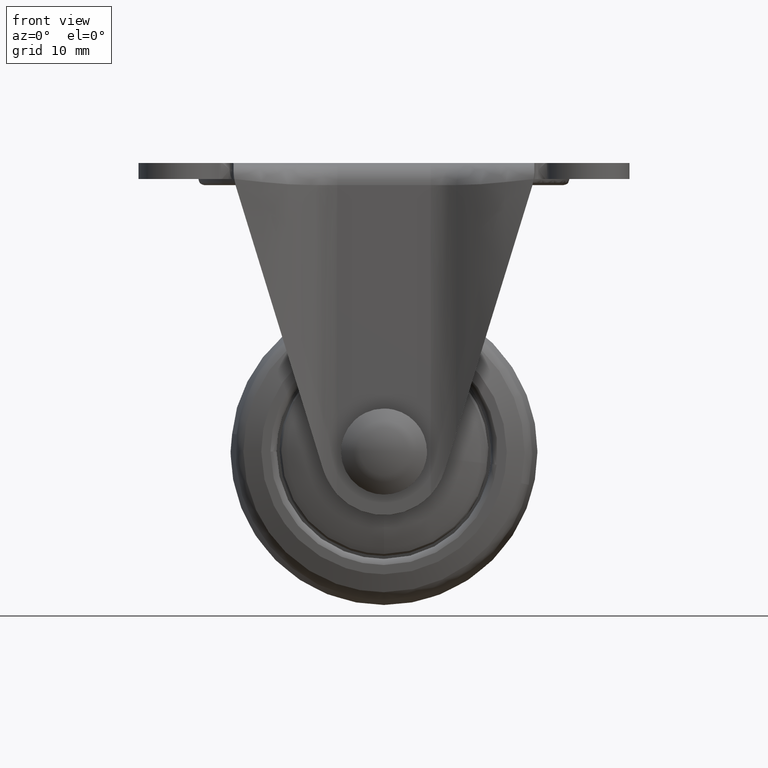
[diagram: clean part render]
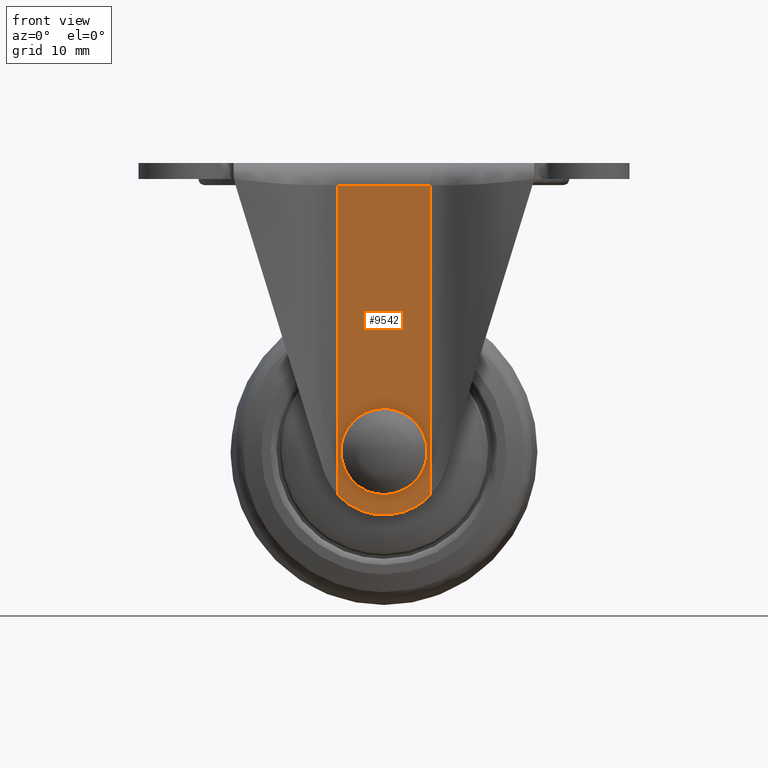
[diagram: same view with one face highlighted and labeled with its STEP entity id]
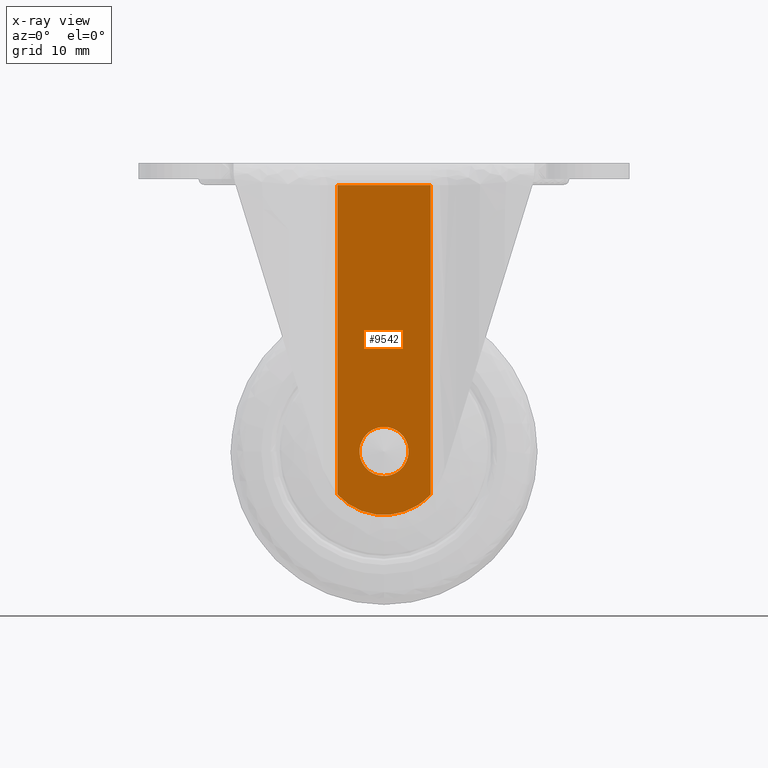
[diagram: x-ray of the same camera — body ghosted, the highlighted face saturated]
A machine part, front view. The second image highlights one B-rep face of the part: STEP entity #9542.
The next image is the same camera in x-ray: the body ghosted, the highlighted face saturated — about 0% of this face is hidden behind the body in this view.
In plain terms, the highlighted face is a freeform B-spline surface patch.
Its self-contained STEP definition (entity closure, byte-faithful):
#4369=CARTESIAN_POINT('',(-2.853001706481240,-18.350000000004560,-44.196363225426133));
#4370=VERTEX_POINT('',#4369);
#4371=CARTESIAN_POINT('',(-4.000000000000063,-18.350000000000001,-47.000001049696692));
#4372=VERTEX_POINT('',#4371);
#4373=CARTESIAN_POINT('',(-2.853001706481240,-18.350000000004560,-44.196363225426133));
#4374=CARTESIAN_POINT('',(-3.057169471233487,-18.350000000004240,-44.404071181896363));
#4375=CARTESIAN_POINT('',(-3.440027392355981,-18.350000000003391,-44.889895564612317));
#4376=CARTESIAN_POINT('',(-3.881446644403412,-18.350000000001959,-45.835107404390307));
#4377=CARTESIAN_POINT('',(-4.000241827033738,-18.350000000000630,-46.579275361415739));
#4378=CARTESIAN_POINT('',(-4.000000000000063,-18.350000000000001,-47.000001049696692));
#4379=B_SPLINE_CURVE_WITH_KNOTS('',3,(#4373,#4374,#4375,#4376,#4377,#4378),.UNSPECIFIED.,.F.,.U.,(4,1,1,4),(0.000000022670151,0.873777186503516,1.844639927694121,3.106763114027519),.UNSPECIFIED.);
#4380=EDGE_CURVE('',#4370,#4372,#4379,.T.);
#4382=CARTESIAN_POINT('',(0.0,-18.350000000000001,-51.000000000000199));
#4383=VERTEX_POINT('',#4382);
#4384=CARTESIAN_POINT('',(-4.000000000000063,-18.350000000000001,-47.000001049696692));
#4385=CARTESIAN_POINT('',(-4.000161342296981,-18.349999999999991,-47.392714889522793));
#4386=CARTESIAN_POINT('',(-3.888292482445107,-18.350000000000041,-48.145312155145277));
#4387=CARTESIAN_POINT('',(-3.461956176320030,-18.349999999999980,-49.076053737938572));
#4388=CARTESIAN_POINT('',(-2.875202047379041,-18.350000000000058,-49.827786266824113));
#4389=CARTESIAN_POINT('',(-2.085211108355884,-18.349999999999930,-50.476453664242079));
#4390=CARTESIAN_POINT('',(-1.079948068102542,-18.350000000000051,-50.907271050555153));
#4391=CARTESIAN_POINT('',(-0.327241858837274,-18.349999999999952,-51.000043624517950));
#4392=CARTESIAN_POINT('',(0.0,-18.350000000000001,-51.000000000000199));
#4393=B_SPLINE_CURVE_WITH_KNOTS('',3,(#4384,#4385,#4386,#4387,#4388,#4389,#4390,#4391,#4392),.UNSPECIFIED.,.F.,.U.,(4,1,1,1,1,1,4),(0.000000078778733,1.178124264635357,2.258086981101089,3.043499914185019,4.025259061890342,5.301575811806094,6.283342385697234),.UNSPECIFIED.);
#4394=EDGE_CURVE('',#4372,#4383,#4393,.T.);
#4396=CARTESIAN_POINT('',(4.000000000000063,-18.350000000000001,-46.999998950303279));
#4397=VERTEX_POINT('',#4396);
#4398=CARTESIAN_POINT('',(0.0,-18.350000000000001,-51.000000000000199));
#4399=CARTESIAN_POINT('',(0.261793853017484,-18.349999999999991,-51.000019281049063));
#4400=CARTESIAN_POINT('',(0.850859246273160,-18.350000000000058,-50.942027385168281));
#4401=CARTESIAN_POINT('',(1.696165913433088,-18.349999999999920,-50.662786295916163));
#4402=CARTESIAN_POINT('',(2.452996110867685,-18.350000000000009,-50.196408551449103));
#4403=CARTESIAN_POINT('',(3.000719315337233,-18.350000000000030,-49.674873854990217));
#4404=CARTESIAN_POINT('',(3.430732557582069,-18.350000000000001,-49.095032114396368));
#4405=CARTESIAN_POINT('',(3.859647130366794,-18.349999999999991,-48.243288675234162));
#4406=CARTESIAN_POINT('',(4.000439233147548,-18.350000000000030,-47.490947407936012));
#4407=CARTESIAN_POINT('',(4.000000000000063,-18.350000000000001,-46.999998950303279));
#4408=B_SPLINE_CURVE_WITH_KNOTS('',3,(#4398,#4399,#4400,#4401,#4402,#4403,#4404,#4405,#4406,#4407),.UNSPECIFIED.,.F.,.U.,(4,1,1,1,1,1,1,4),(0.000000077339529,0.785414239374456,1.767193002249610,2.650800025445448,3.436193255036455,4.025259820772587,4.810685130190130,6.283343568979639),.UNSPECIFIED.);
#4409=EDGE_CURVE('',#4383,#4397,#4408,.T.);
#4411=CARTESIAN_POINT('',(2.803637145662212,-18.349999999995461,-44.146997922444108));
#4412=VERTEX_POINT('',#4411);
#4413=CARTESIAN_POINT('',(4.000000000000063,-18.350000000000001,-46.999998950303279));
#4414=CARTESIAN_POINT('',(4.000055727859579,-18.349999999999479,-46.702198145834281));
#4415=CARTESIAN_POINT('',(3.936873434211988,-18.349999999998719,-46.139728830423770));
#4416=CARTESIAN_POINT('',(3.599630436110362,-18.349999999996939,-45.130487685951927));
#4417=CARTESIAN_POINT('',(3.158039584348932,-18.349999999996129,-44.494596322270837));
#4418=CARTESIAN_POINT('',(2.803637145662212,-18.349999999995461,-44.146997922444108));
#4419=B_SPLINE_CURVE_WITH_KNOTS('',3,(#4413,#4414,#4415,#4416,#4417,#4418),.UNSPECIFIED.,.F.,.U.,(4,1,1,4),(0.000000025413732,0.893413169786977,1.687557520685987,3.176579917887443),.UNSPECIFIED.);
#4420=EDGE_CURVE('',#4397,#4412,#4419,.T.);
#4501=CARTESIAN_POINT('',(0.0,-18.350000000000001,-42.999999999999801));
#4502=VERTEX_POINT('',#4501);
#4503=CARTESIAN_POINT('',(0.0,-18.350000000000001,-42.999999999999801));
#4504=CARTESIAN_POINT('',(-0.363983900347578,-18.350000000000609,-42.999886517765248));
#4505=CARTESIAN_POINT('',(-0.992599087648928,-18.350000000001561,-43.086416557549818));
#4506=CARTESIAN_POINT('',(-1.983805371693815,-18.350000000003210,-43.473429572811391));
#4507=CARTESIAN_POINT('',(-2.551668170922923,-18.350000000004052,-43.889341910306072));
#4508=CARTESIAN_POINT('',(-2.853001706481240,-18.350000000004560,-44.196363225426133));
#4509=B_SPLINE_CURVE_WITH_KNOTS('',3,(#4503,#4504,#4505,#4506,#4507,#4508),.UNSPECIFIED.,.F.,.U.,(4,1,1,4),(0.000000025388225,1.091950042116503,1.886094078654494,3.176580763883447),.UNSPECIFIED.);
#4510=EDGE_CURVE('',#4502,#4370,#4509,.T.);
#4534=CARTESIAN_POINT('',(2.803637145662212,-18.349999999995461,-44.146997922444108));
#4535=CARTESIAN_POINT('',(2.642071074811826,-18.349999999995742,-43.988218493025983));
#4536=CARTESIAN_POINT('',(2.216863463417174,-18.349999999996410,-43.636005603959802));
#4537=CARTESIAN_POINT('',(1.294209981907709,-18.349999999997920,-43.149164680995312));
#4538=CARTESIAN_POINT('',(0.485481437046578,-18.349999999999209,-42.999573128995692));
#4539=CARTESIAN_POINT('',(0.0,-18.350000000000001,-42.999999999999801));
#4540=B_SPLINE_CURVE_WITH_KNOTS('',3,(#4534,#4535,#4536,#4537,#4538,#4539),.UNSPECIFIED.,.F.,.U.,(4,1,1,4),(0.000000022645733,0.679604220441448,1.650466955446678,3.106762272634537),.UNSPECIFIED.);
#4541=EDGE_CURVE('',#4412,#4502,#4540,.T.);
#7621=CARTESIAN_POINT('',(-7.624870356053560,-18.350000000000001,-3.600000000000050));
#7622=VERTEX_POINT('',#7621);
#7673=CARTESIAN_POINT('',(7.624871000000000,-18.350000000000001,-3.600000000000050));
#7674=VERTEX_POINT('',#7673);
#7696=CARTESIAN_POINT('',(7.624871000000000,-18.350000000000001,-3.600000000000050));
#7697=CARTESIAN_POINT('',(-7.624870356053560,-18.350000000000001,-3.600000000000050));
#7698=QUASI_UNIFORM_CURVE('',1,(#7696,#7697),.UNSPECIFIED.,.F.,.U.);
#7699=EDGE_CURVE('',#7674,#7622,#7698,.T.);
#7922=CARTESIAN_POINT('',(7.624871000000000,-18.350000000000001,-53.998844938421101));
#7923=VERTEX_POINT('',#7922);
#7941=CARTESIAN_POINT('',(-7.624870356053560,-18.350000000000001,-53.998845639966497));
#7942=VERTEX_POINT('',#7941);
#7943=CARTESIAN_POINT('',(-7.624870356053560,-18.350000000000001,-53.998845639966497));
#7944=CARTESIAN_POINT('',(-7.051423260495849,-18.349999999999991,-54.623912325336498));
#7945=CARTESIAN_POINT('',(-6.057920485636546,-18.349999999999952,-55.469214437073099));
#7946=CARTESIAN_POINT('',(-4.541654887387915,-18.350000000000090,-56.332468353400962));
#7947=CARTESIAN_POINT('',(-3.009564339179203,-18.349999999999920,-56.959150224172227));
#7948=CARTESIAN_POINT('',(-0.946533815423607,-18.350000000000161,-57.406695183273797));
#7949=CARTESIAN_POINT('',(1.258635452124933,-18.349999999999699,-57.349532629060448));
#7950=CARTESIAN_POINT('',(3.175679985343027,-18.350000000000559,-56.894525860138977));
#7951=CARTESIAN_POINT('',(4.501974189332968,-18.349999999999898,-56.352118629421341));
#7952=CARTESIAN_POINT('',(6.055932394600169,-18.349999999999739,-55.467358211706653));
#7953=CARTESIAN_POINT('',(7.021283371954207,-18.350000000000730,-54.656866627313192));
#7954=CARTESIAN_POINT('',(7.624871000000000,-18.350000000000001,-53.998844938421101));
#7955=B_SPLINE_CURVE_WITH_KNOTS('',3,(#7943,#7944,#7945,#7946,#7947,#7948,#7949,#7950,#7951,#7952,#7953,#7954),.UNSPECIFIED.,.F.,.U.,(4,1,1,1,1,1,1,1,1,4),(0.000000107592339,2.544727700877949,3.884061478890947,5.223411325896086,7.500280208109537,10.178900376289761,11.786117065809300,13.393338901662050,14.464798266158549,17.143464131433500),.UNSPECIFIED.);
#7956=EDGE_CURVE('',#7942,#7923,#7955,.T.);
#8661=CARTESIAN_POINT('',(7.624871000000000,-18.350000000000001,-53.998844938421101));
#8662=CARTESIAN_POINT('',(7.624871000000000,-18.350000000000001,-3.600000000000050));
#8663=QUASI_UNIFORM_CURVE('',1,(#8661,#8662),.UNSPECIFIED.,.F.,.U.);
#8664=EDGE_CURVE('',#7923,#7674,#8663,.T.);
#8685=CARTESIAN_POINT('',(-7.624870356053560,-18.350000000000001,-53.998845639966497));
#8686=CARTESIAN_POINT('',(-7.624870356053560,-18.350000000000001,-3.600000000000050));
#8687=QUASI_UNIFORM_CURVE('',1,(#8685,#8686),.UNSPECIFIED.,.F.,.U.);
#8688=EDGE_CURVE('',#7942,#7622,#8687,.T.);
#9523=CARTESIAN_POINT('',(-8.386594852748692,-18.350000000000001,-0.915192134432533));
#9524=CARTESIAN_POINT('',(-8.386594852748692,-18.350000000000001,-60.034708029473471));
#9525=CARTESIAN_POINT('',(8.386594814978571,-18.350000000000001,-0.915192134432533));
#9526=CARTESIAN_POINT('',(8.386594814978571,-18.350000000000001,-60.034708029473471));
#9527=B_SPLINE_SURFACE_WITH_KNOTS('',1,1,((#9523,#9525),(#9524,#9526)),.UNSPECIFIED.,.F.,.F.,.U.,(2,2),(2,2),(0.0,59.119515895040927),(0.0,16.773189667727259),.UNSPECIFIED.);
#9528=ORIENTED_EDGE('',*,*,#8664,.T.);
#9529=ORIENTED_EDGE('',*,*,#7699,.T.);
#9530=ORIENTED_EDGE('',*,*,#8688,.F.);
#9531=ORIENTED_EDGE('',*,*,#7956,.T.);
#9532=EDGE_LOOP('',(#9528,#9529,#9530,#9531));
#9533=FACE_OUTER_BOUND('',#9532,.T.);
#9534=ORIENTED_EDGE('',*,*,#4409,.F.);
#9535=ORIENTED_EDGE('',*,*,#4394,.F.);
#9536=ORIENTED_EDGE('',*,*,#4380,.F.);
#9537=ORIENTED_EDGE('',*,*,#4510,.F.);
#9538=ORIENTED_EDGE('',*,*,#4541,.F.);
#9539=ORIENTED_EDGE('',*,*,#4420,.F.);
#9540=EDGE_LOOP('',(#9534,#9535,#9536,#9537,#9538,#9539));
#9541=FACE_BOUND('',#9540,.T.);
#9542=ADVANCED_FACE('',(#9533,#9541),#9527,.T.);